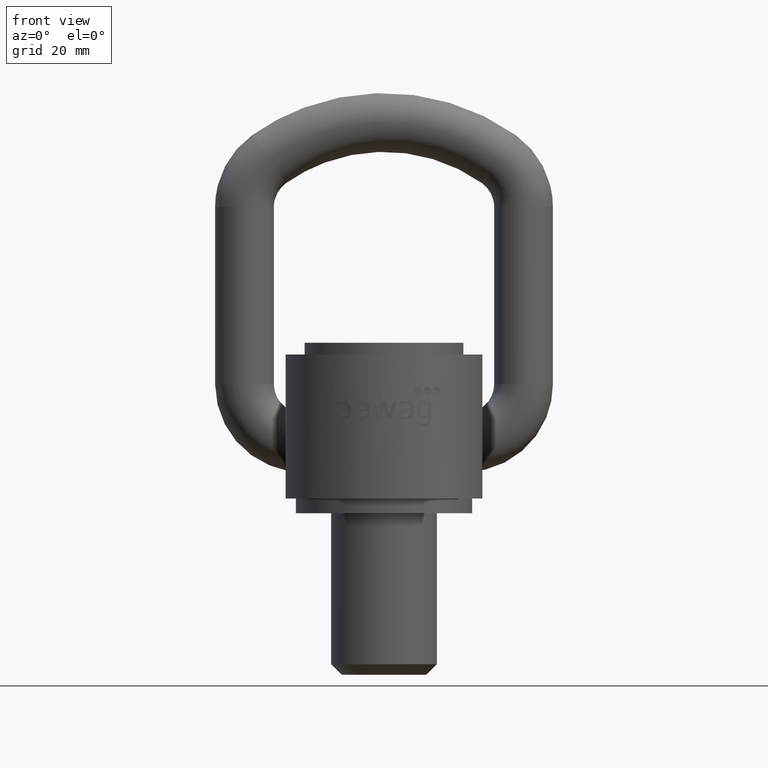
[diagram: clean part render]
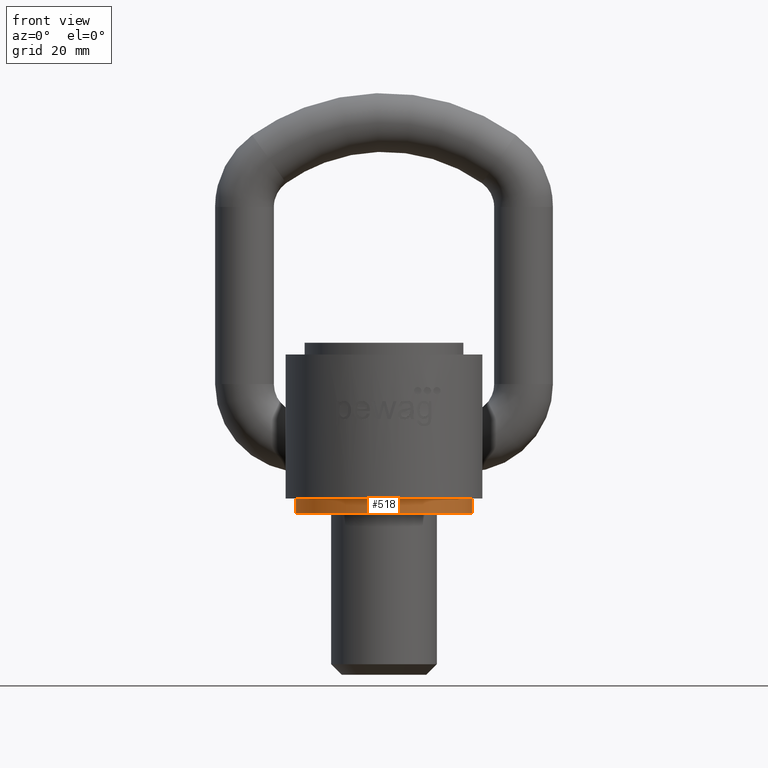
[diagram: same view with one face highlighted and labeled with its STEP entity id]
A machine part, front view. The second image highlights one B-rep face of the part: STEP entity #518.
In plain terms, the highlighted cylindrical surface (bore or boss wall) has radius 30 mm, axis along (0, 0, 1).
Its self-contained STEP definition (entity closure, byte-faithful):
#204=CYLINDRICAL_SURFACE('',#2306,30.);
#250=FACE_BOUND('',#803,.T.);
#251=FACE_BOUND('',#804,.T.);
#309=CIRCLE('',#2292,30.);
#315=CIRCLE('',#2305,30.);
#518=ADVANCED_FACE('',(#250,#251),#204,.T.);
#803=EDGE_LOOP('',(#1061));
#804=EDGE_LOOP('',(#1062));
#1061=ORIENTED_EDGE('',*,*,#1808,.F.);
#1062=ORIENTED_EDGE('',*,*,#1799,.T.);
#1593=VERTEX_POINT('',#3594);
#1599=VERTEX_POINT('',#3616);
#1799=EDGE_CURVE('',#1593,#1593,#309,.T.);
#1808=EDGE_CURVE('',#1599,#1599,#315,.T.);
#2292=AXIS2_PLACEMENT_3D('',#3593,#2487,#2488);
#2305=AXIS2_PLACEMENT_3D('',#3615,#2516,#2517);
#2306=AXIS2_PLACEMENT_3D('',#3617,#2518,#2519);
#2487=DIRECTION('',(0.,0.,-1.));
#2488=DIRECTION('',(1.,1.22464679914735E-16,0.));
#2516=DIRECTION('',(0.,0.,-1.));
#2517=DIRECTION('',(1.,1.22464679914735E-16,0.));
#2518=DIRECTION('',(0.,0.,1.));
#2519=DIRECTION('',(1.,0.,0.));
#3593=CARTESIAN_POINT('',(0.,0.,6.69539461904587E-14));
#3594=CARTESIAN_POINT('',(30.,3.67394039744206E-15,6.69539461904587E-14));
#3615=CARTESIAN_POINT('',(0.,0.,-4.99999999999993));
#3616=CARTESIAN_POINT('',(30.,3.67394039744206E-15,-4.99999999999993));
#3617=CARTESIAN_POINT('',(0.,0.,-4.99999999999993));